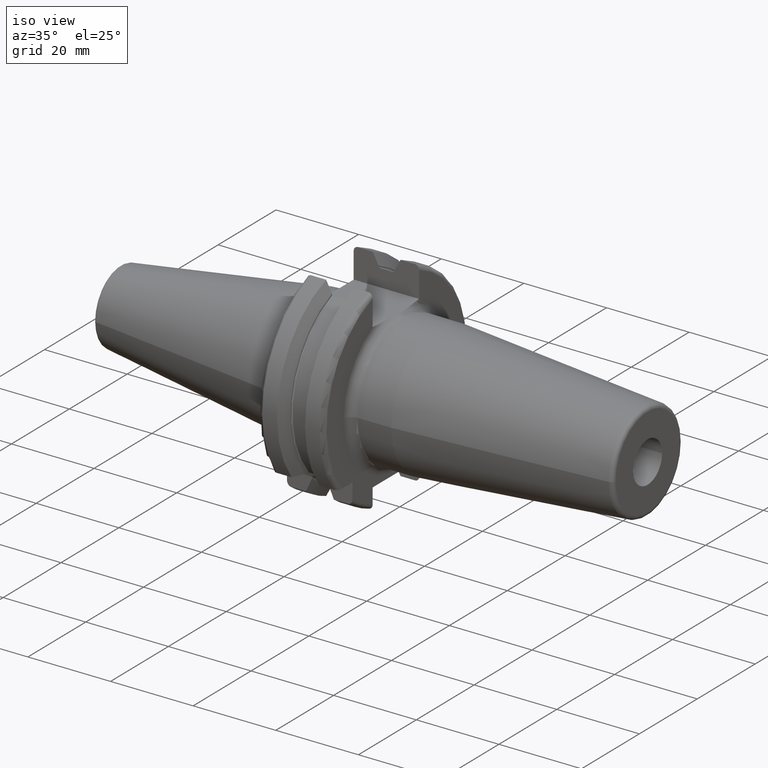
[diagram: clean part render]
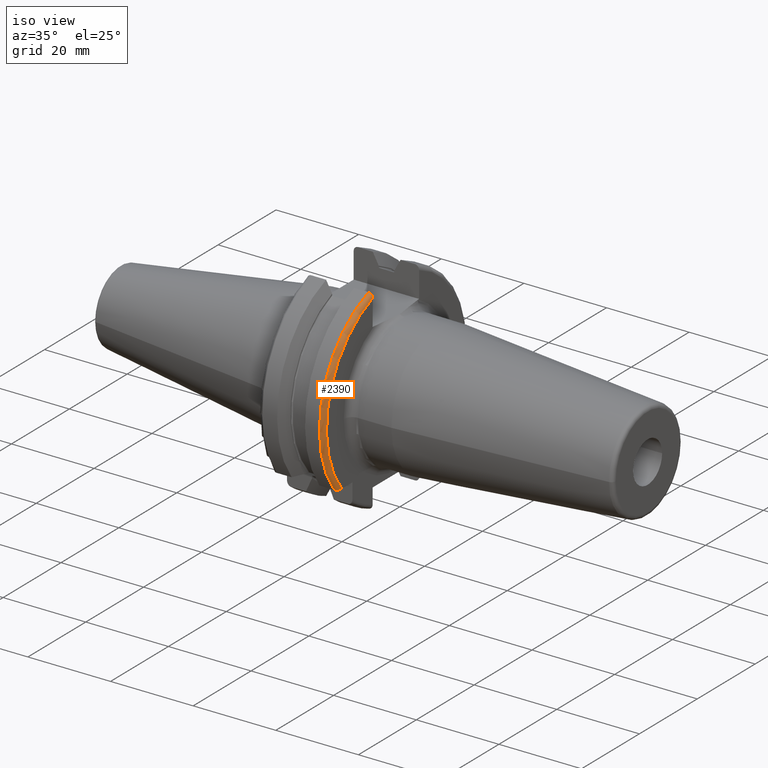
[diagram: same view with one face highlighted and labeled with its STEP entity id]
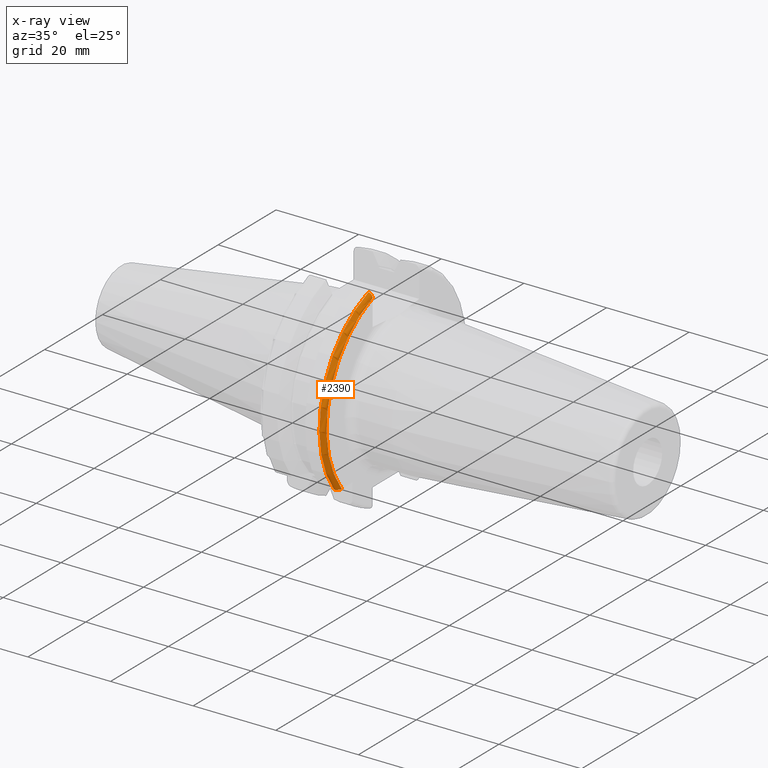
[diagram: x-ray of the same camera — body ghosted, the highlighted face saturated]
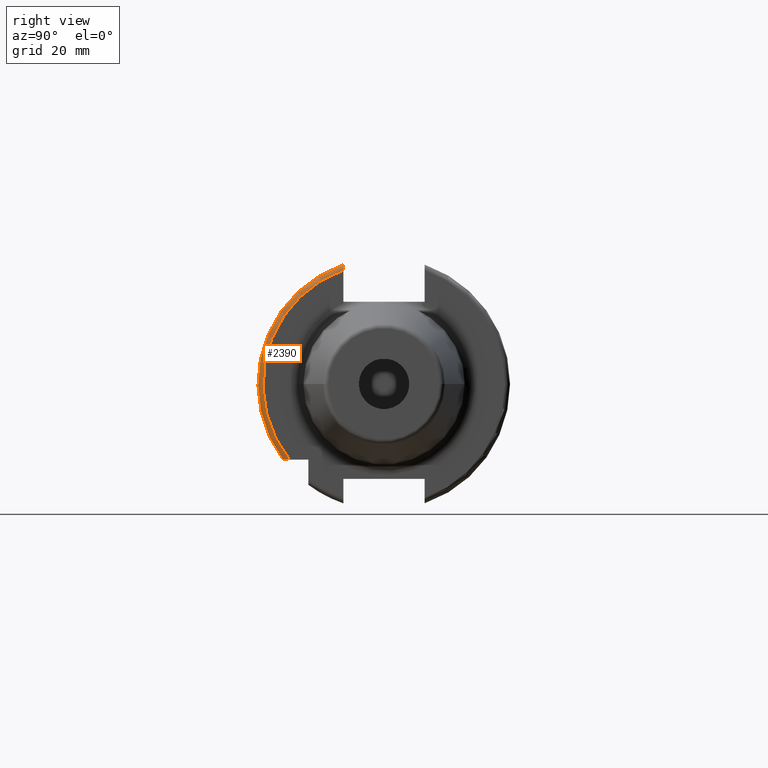
[diagram: same view with one face highlighted and labeled with its STEP entity id]
A machine part, iso view. The second image highlights one B-rep face of the part: STEP entity #2390.
The next image is the same camera in x-ray: the body ghosted, the highlighted face saturated — about 0% of this face is hidden behind the body in this view.
A second angle (right view) of the same face is appended — the face is thin or edge-on in the first view.
In plain terms, the highlighted toroidal blend (fillet) surface has major radius 23.99 mm and minor (blend) radius 1 mm.
Its self-contained STEP definition (entity closure, byte-faithful):
#780=CARTESIAN_POINT('',(1.905E1,0.E0,0.E0));
#781=DIRECTION('',(1.E0,0.E0,0.E0));
#782=DIRECTION('',(0.E0,-3.355564818674E-1,9.420200886800E-1));
#783=AXIS2_PLACEMENT_3D('',#780,#781,#782);
#785=CARTESIAN_POINT('',(1.805E1,-1.998749859287E1,-1.5E1));
#786=CARTESIAN_POINT('',(1.814952966467E1,-1.998749859287E1,-1.5E1));
#787=CARTESIAN_POINT('',(1.833654976283E1,-1.995161606389E1,-1.5E1));
#788=CARTESIAN_POINT('',(1.858687273396E1,-1.980955620481E1,-1.5E1));
#789=CARTESIAN_POINT('',(1.879007346722E1,-1.959751372677E1,-1.5E1));
#790=CARTESIAN_POINT('',(1.894104993121E1,-1.933098134452E1,-1.5E1));
#791=CARTESIAN_POINT('',(1.903143786692E1,-1.902744615683E1,-1.5E1));
#792=CARTESIAN_POINT('',(1.905E1,-1.882528698555E1,-1.5E1));
#793=CARTESIAN_POINT('',(1.905E1,-1.872218203095E1,-1.5E1));
#795=CARTESIAN_POINT('',(1.805E1,0.E0,0.E0));
#796=DIRECTION('',(-1.E0,0.E0,0.E0));
#797=DIRECTION('',(0.E0,-7.998198716635E-1,-6.002400960384E-1));
#798=AXIS2_PLACEMENT_3D('',#795,#796,#797);
#800=CARTESIAN_POINT('',(1.905E1,-8.05E0,2.259906192743E1));
#801=CARTESIAN_POINT('',(1.905E1,-8.05E0,2.267923724554E1));
#802=CARTESIAN_POINT('',(1.903329151926E1,-8.05E0,2.283481698751E1));
#803=CARTESIAN_POINT('',(1.896067182008E1,-8.05E0,2.305788257794E1));
#804=CARTESIAN_POINT('',(1.884329828325E1,-8.05E0,2.325863729503E1));
#805=CARTESIAN_POINT('',(1.868593674730E1,-8.05E0,2.342822773248E1));
#806=CARTESIAN_POINT('',(1.849441961593E1,-8.05E0,2.355812532143E1));
#807=CARTESIAN_POINT('',(1.827794831249E1,-8.05E0,2.363940796394E1));
#808=CARTESIAN_POINT('',(1.812758044193E1,-8.05E0,2.365792890344E1));
#809=CARTESIAN_POINT('',(1.805E1,-8.05E0,2.365792890344E1));
#1341=CARTESIAN_POINT('',(1.905E1,-8.05E0,2.259906192743E1));
#1343=VERTEX_POINT('',#1341);
#1353=CARTESIAN_POINT('',(1.905E1,-1.872218203095E1,-1.5E1));
#1354=VERTEX_POINT('',#1353);
#1357=CARTESIAN_POINT('',(1.805E1,-8.05E0,2.365792890344E1));
#1358=VERTEX_POINT('',#1357);
#1403=CARTESIAN_POINT('',(1.805E1,-1.998749859287E1,-1.5E1));
#1404=VERTEX_POINT('',#1403);
#2378=CARTESIAN_POINT('',(1.805E1,0.E0,0.E0));
#2379=DIRECTION('',(1.E0,0.E0,0.E0));
#2380=DIRECTION('',(0.E0,-1.E0,0.E0));
#2381=AXIS2_PLACEMENT_3D('',#2378,#2379,#2380);
#2382=TOROIDAL_SURFACE('',#2381,2.399E1,1.E0);
#2383=ORIENTED_EDGE('',*,*,#1649,.T.);
#2384=ORIENTED_EDGE('',*,*,#2353,.F.);
#2385=ORIENTED_EDGE('',*,*,#2142,.T.);
#2387=ORIENTED_EDGE('',*,*,#2386,.F.);
#2388=EDGE_LOOP('',(#2383,#2384,#2385,#2387));
#2389=FACE_OUTER_BOUND('',#2388,.F.);
#2390=ADVANCED_FACE('',(#2389),#2382,.T.);
#784=CIRCLE('',#783,2.399E1);
#794=B_SPLINE_CURVE_WITH_KNOTS('',3,(#785,#786,#787,#788,#789,#790,#791,#792,
#793),.UNSPECIFIED.,.F.,.F.,(4,1,1,1,1,1,4),(0.E0,1.666666666667E-1,
3.333333333333E-1,5.E-1,6.666666666667E-1,8.333333333333E-1,1.E0),
.UNSPECIFIED.);
#799=CIRCLE('',#798,2.499E1);
#810=B_SPLINE_CURVE_WITH_KNOTS('',3,(#800,#801,#802,#803,#804,#805,#806,#807,
#808,#809),.UNSPECIFIED.,.F.,.F.,(4,1,1,1,1,1,1,4),(0.E0,1.428571428571E-1,
2.857142857143E-1,4.285714285714E-1,5.714285714286E-1,7.142857142857E-1,
8.571428571429E-1,1.E0),.UNSPECIFIED.);
#1649=EDGE_CURVE('',#1343,#1354,#784,.T.);
#2142=EDGE_CURVE('',#1404,#1358,#799,.T.);
#2353=EDGE_CURVE('',#1404,#1354,#794,.T.);
#2386=EDGE_CURVE('',#1343,#1358,#810,.T.);